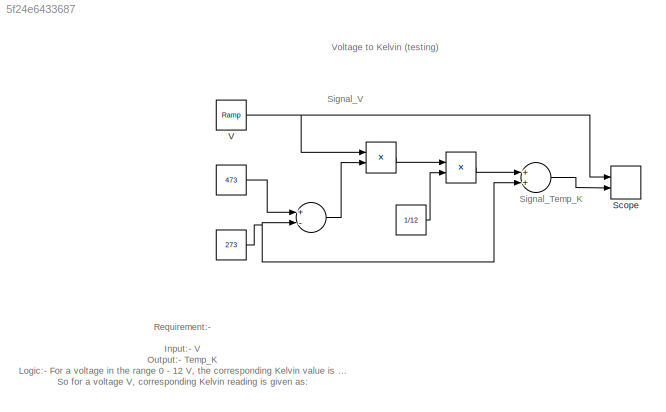
MODEL slx_5f24e6433687
KIND model
CONFIG AbsTol = auto
CONFIG FixedStep = auto
CONFIG MaxStep = auto
CONFIG MinStep = auto
CONFIG RelTol = 1e-3
CONFIG SampleTimeConstraint = Unconstrained
CONFIG Solver = ode45
CONFIG SolverMode = Auto
CONFIG SolverName = ode45
CONFIG StartTime = 0.0
CONFIG StopTime = 10.0
BLOCK [Constant]  
  Value = 473
BLOCK [Constant]   
  Value = 273
BLOCK [Constant]    
  Value = 1/12
BLOCK [Product]     
  InputSameDT = off
  OutDataTypeStr = Inherit: Inherit via internal rule
  Ports = [2, 1]
  RndMeth = Floor
  SaturateOnIntegerOverflow = off
BLOCK [Sum]      
  InputSameDT = off
  Inputs = +-
  OutDataTypeStr = Inherit: Inherit via internal rule
  Ports = [2, 1]
  SaturateOnIntegerOverflow = off
BLOCK [Sum]       
  InputSameDT = off
  OutDataTypeStr = Inherit: Inherit via internal rule
  Ports = [2, 1]
  SaturateOnIntegerOverflow = off
BLOCK [Product]        
  InputSameDT = off
  OutDataTypeStr = Inherit: Inherit via internal rule
  Ports = [2, 1]
  RndMeth = Floor
  SaturateOnIntegerOverflow = off
BLOCK [TimeScope] Scope
  NumInputPorts = 2
  Ports = [2]
  ScopeSpecificationString = Simulink.scopes.TimeScopeBlockCfg('CurrentConfiguration', extmgr.ConfigurationSet(extmgr.Configuration('Core','General UI',true),extmgr.Configuration('Core','Source UI',true),extmgr.Configuration('Sources','WiredSimulink',true,'DataLoggingLimitDataPoints',true,'DataLoggingDecimation','1','DataLoggingDecimateData',true,'DataLoggingSaveFormat','Array'),extmgr.Configuration('Visuals','Time Domain',tr...<+1663ch>
BLOCK [Reference] V  REF=simulink/Sources/Ramp
  Ports = [0, 1]
  SourceBlock = simulink/Sources/Ramp
  SourceType = Ramp
  VectorParams1D = on
  X0 = 0
  slope = 11
  start = 0
ANNOTATION (root): Voltage to Kelvin (testing)
ANNOTATION (root): Requirement:- Input:- V Output:- Temp_K Logic:- For a voltage in the range 0 - 12 V, the corresponding Kelvin value is in the range 273 - 473 K So for a voltage V, corresponding Kelvin reading is given as: Temp_K= (473-273)*V/12 + 273. Testing range:- for inputs in range 0 - 220V in steps of 20.
ANNOTATION (root): Signal_Temp_K
ANNOTATION (root): Signal_V
LINE        :1 ->       :1
LINE       :1 -> Scope:2
LINE      :1 ->     :2
LINE     :1 ->        :1
LINE    :1 ->        :2
NET   :1 ->       :2,      :2
LINE  :1 ->      :1
NET V:1 ->     :1, Scope:1
note: NET lines group one-source signal fan-out (src -> all destinations, sorted); 1:1 wires keep LINE
